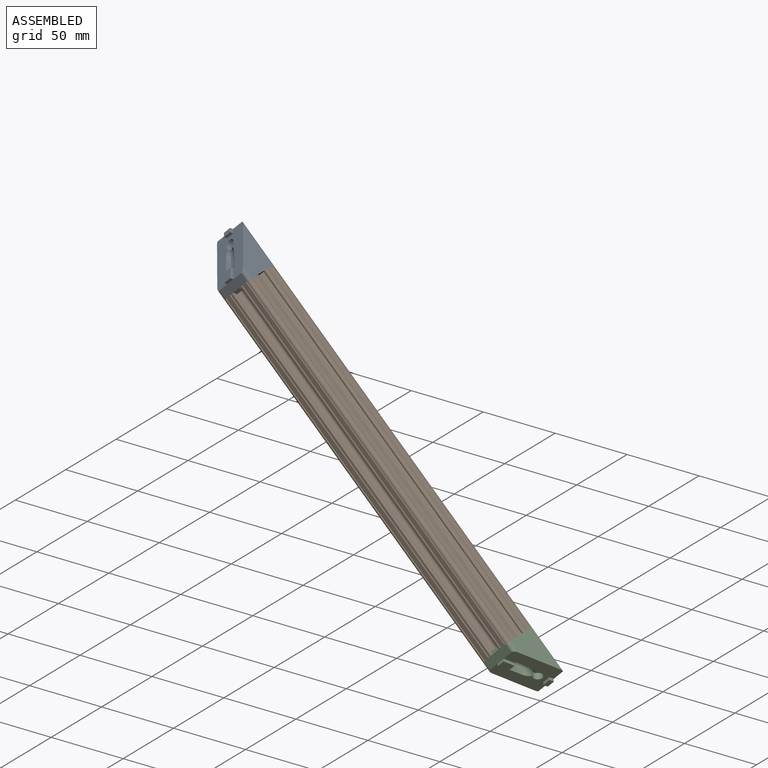
[diagram: assembled view]
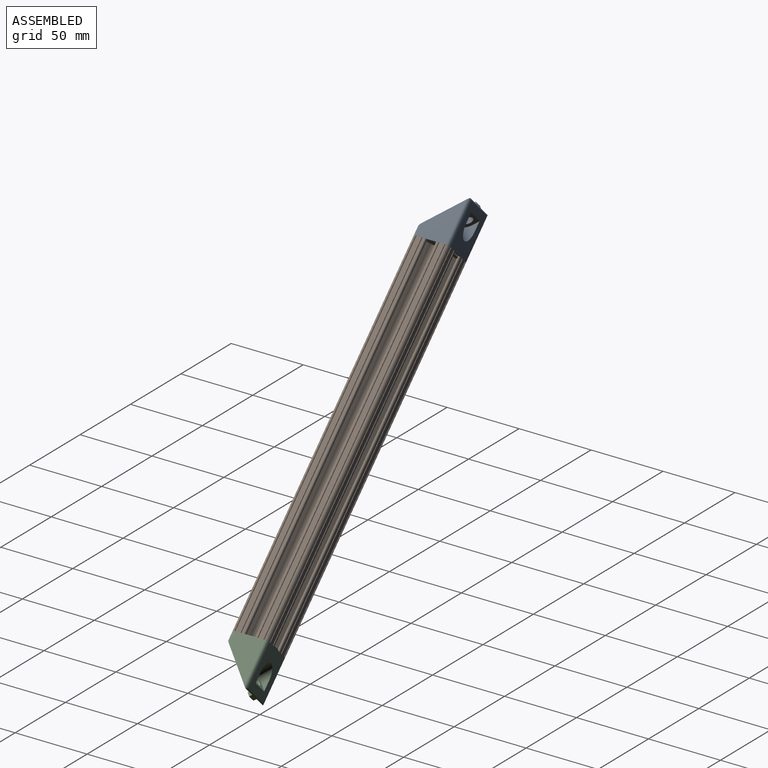
[diagram: assembled view, second angle]
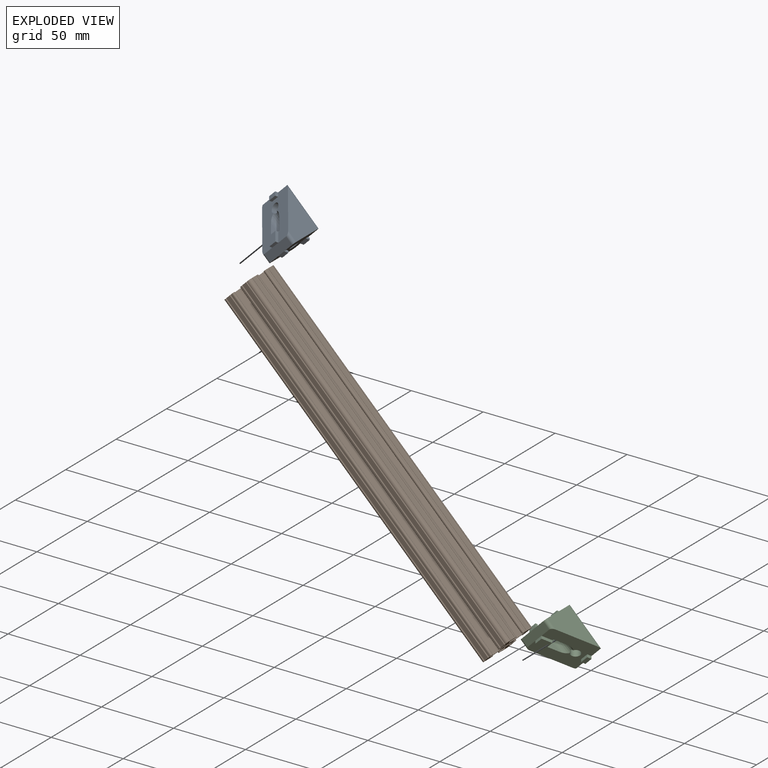
[diagram: exploded view]
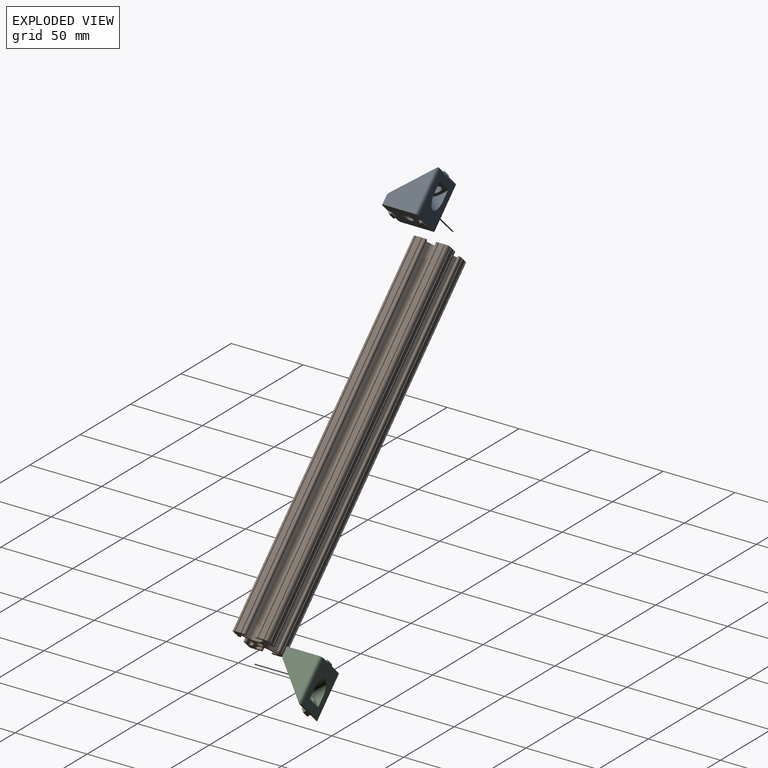
[diagram: exploded view, second angle]
ASSEMBLY  parts=3 mates=6
PART A: 49 faces, bbox 39.7x25.5x24.7 mm
  f0: plane 34.99x25.47mm, normal (0,0,-1), area 668.3mm2, adj f2,f4,f5,f6,f7,f12,f13,f14
  f1: plane 25.4x17.96mm, normal (-0.71,0,0.71), area 581.7mm2, adj f3,f4,f5,f6,f12,f13,f14,f15
  f2: plane 24.33x3mm, normal (1,0,0), area 35.4mm2, adj f0,f3,f14,f15,f25,f26,f27
  f3: plane 21.18x21.13mm, normal (0.71,0,0.71), area 468.4mm2, adj f1,f2,f8,f9,f10,f11,f14,f15
  f4: plane 21.18x4.17mm, normal (-0.71,0,-0.71), area 125mm2, adj f0,f1,f12,f13,f20,f28
  f5: plane 35.62x20.64mm, normal (0,-1,0), area 394mm2, adj f0,f1,f13,f15
  f6: plane 35.62x20.64mm, normal (0,1,0), area 394mm2, adj f0,f1,f12,f14
  f7: cylinder r=3.3mm len=6.6mm, axis (0,0,1), area 101.5mm2, adj f0,f11,f41
  f8: cylinder r=6mm len=12mm, axis (0,0,-1), area 156.8mm2, adj f3,f9,f10,f17
  f9: plane 4.5x4.5mm, normal (0,1,0), area 10.1mm2, adj f3,f8,f18
  f10: plane 4.5x4.5mm, normal (0,-1,0), area 10.1mm2, adj f3,f8,f16
  f11: plane 11x10.5mm, normal (0,0,1), area 68.3mm2, adj f3,f7,f16,f17,f18
  f12: cylinder r=2.11mm len=7.15mm, axis (-0.71,0,0.71), area 22.1mm2, adj f0,f1,f4,f6
  f13: cylinder r=2.11mm len=7.15mm, axis (0.71,0,-0.71), area 22.1mm2, adj f0,f1,f4,f5
  f14: cylinder r=2.11mm len=23.12mm, axis (0.71,0,-0.71), area 99.5mm2, adj f0,f1,f2,f3,f6
  f15: cylinder r=2.11mm len=23.12mm, axis (-0.71,0,0.71), area 99.5mm2, adj f0,f1,f2,f3,f5
  f16: cylinder r=0.5mm len=5mm, axis (-1,0,0), area 3.8mm2, adj f3,f10,f11,f17
  f17: torus R=5.5mm, axis (0,0,-1), area 14.4mm2, adj f8,f11,f16,f18
  f18: cylinder r=0.5mm len=5mm, axis (1,0,0), area 3.8mm2, adj f3,f9,f11,f17
  f19: plane 6x2mm, normal (1,0,0), area 12mm2, adj f21,f22,f23,f43
  f20: plane 6x2mm, normal (-1,0,0), area 12mm2, adj f4,f21,f22,f23
  f21: plane 7.5x6mm, normal (0,0,-1), area 45mm2, adj f19,f20,f22,f23
  f22: plane 7.5x2mm, normal (0,-1,0), area 15mm2, adj f0,f19,f20,f21
  f23: plane 7.5x2mm, normal (0,1,0), area 15mm2, adj f0,f19,f20,f21
  f24: plane 6x2mm, normal (-1,0,0), area 12mm2, adj f0,f25,f26,f27
  f25: plane 6x3mm, normal (0,0,-1), area 18mm2, adj f2,f24,f26,f27
  f26: plane 3x2mm, normal (0,-1,0), area 6mm2, adj f0,f2,f24,f25
  f27: plane 3x2mm, normal (0,1,0), area 6mm2, adj f0,f2,f24,f25
  f28: plane 6x2.83mm, normal (-1,0,0), area 17mm2, adj f4,f30,f31,f32
  f29: plane 6x1.33mm, normal (1,0,0), area 8mm2, adj f1,f30,f31,f32
  f30: plane 6x1.5mm, normal (0,0,1), area 9mm2, adj f28,f29,f31,f32
  f31: plane 2.83x1.5mm, normal (0,-1,0), area 3.1mm2, adj f1,f28,f29,f30
  f32: plane 2.83x1.5mm, normal (0,1,0), area 3.1mm2, adj f1,f28,f29,f30
  f33: plane 6x2.83mm, normal (-1,0,0), area 17mm2, adj f1,f35,f36,f37
  f34: plane 6x1.33mm, normal (1,0,0), area 8mm2, adj f1,f35,f36,f37
  f35: plane 6x1.5mm, normal (0,0,1), area 9mm2, adj f33,f34,f36,f37
  f36: plane 2.83x1.5mm, normal (0,-1,0), area 3.1mm2, adj f1,f33,f34,f35
  f37: plane 2.83x1.5mm, normal (0,1,0), area 3.1mm2, adj f1,f33,f34,f35
  f38: cylinder r=3.3mm len=8.2mm, axis (0.71,0,-0.71), area 103.7mm2, adj f1,f42
  f39: plane 12.05x9.26mm, normal (-0.01,1,0.01), area 57.9mm2, adj f0,f41,f46,f47
  f40: plane 12.05x9.26mm, normal (-0.01,-1,0.01), area 57.9mm2, adj f0,f41,f44,f48
  f41: cone r=4.25mm half-angle=1deg, axis (-0.71,0,0.71), area 198.4mm2, adj f0,f7,f39,f40,f45
  f42: plane 7.48x5.65mm, normal (0.71,0,-0.71), area 19.6mm2, adj f38,f43,f44,f45,f46
  f43: plane 7.49x6.61mm, normal (0.95,0,0.31), area 51.4mm2, adj f0,f19,f42,f44,f46,f47,f48
  f44: cylinder r=0.5mm len=3.37mm, axis (0.71,0,0.71), area 3.3mm2, adj f40,f42,f43,f45,f48
  f45: torus R=3.74mm, axis (-0.71,0,0.71), area 10.1mm2, adj f41,f42,f44,f46
  f46: cylinder r=0.5mm len=3.37mm, axis (-0.71,0,-0.71), area 3.3mm2, adj f39,f42,f43,f45,f47
  f47: cylinder r=0.5mm len=6.91mm, axis (0.31,0.02,-0.95), area 5.5mm2, adj f0,f39,f43,f46
  f48: cylinder r=0.5mm len=6.91mm, axis (0.31,-0.02,-0.95), area 5.5mm2, adj f0,f40,f43,f44
PART B: 99 faces, bbox 25.4x25.4x254 mm
  f0: cylinder r=1.08mm len=254mm, axis (0,0,1), area 646.8mm2, adj f1,f95,f97,f98
  f1: plane 254x3.23mm, normal (0.71,0.71,0), area 1158.3mm2, adj f0,f2,f97,f98
  f2: cylinder r=3.17mm len=254mm, axis (0,0,1), area 632.6mm2, adj f1,f3,f97,f98
  f3: plane 254x3.42mm, normal (0,1,0), area 868.3mm2, adj f2,f4,f97,f98
  f4: cylinder r=3.17mm len=254mm, axis (0,0,1), area 632.6mm2, adj f3,f5,f97,f98
  f5: plane 254x3.23mm, normal (-0.71,0.71,0), area 1158.3mm2, adj f4,f6,f97,f98
  f6: cylinder r=1.08mm len=254mm, axis (0,0,1), area 646.8mm2, adj f5,f7,f97,f98
  f7: plane 254x2.13mm, normal (0,-1,0), area 540.7mm2, adj f6,f8,f97,f98
  f8: cylinder r=1.05mm len=254mm, axis (0,0,1), area 418.5mm2, adj f7,f9,f97,f98
  f9: plane 254x0.11mm, normal (-1,0,0), area 28.4mm2, adj f8,f10,f97,f98
  f10: cylinder r=1.05mm len=254mm, axis (0,0,1), area 418.5mm2, adj f9,f11,f97,f98
  f11: plane 254x1.03mm, normal (0,1,0), area 261.5mm2, adj f10,f12,f97,f98
  f12: cylinder r=0.51mm len=254mm, axis (0,0,1), area 405.4mm2, adj f11,f13,f97,f98
  f13: plane 254x3.22mm, normal (0,1,0), area 817.2mm2, adj f12,f14,f97,f98
  f14: cylinder r=0.51mm len=254mm, axis (0,0,1), area 405.3mm2, adj f13,f15,f97,f98
  f15: cylinder r=2.11mm len=254mm, axis (0,0,1), area 854mm2, adj f14,f16,f97,f98
  f16: cylinder r=0.51mm len=254mm, axis (0,0,1), area 405.3mm2, adj f15,f17,f97,f98
  f17: plane 254x3.22mm, normal (1,0,0), area 817.2mm2, adj f16,f18,f97,f98
  f18: cylinder r=0.51mm len=254mm, axis (0,0,1), area 405.4mm2, adj f17,f19,f97,f98
  f19: plane 254x1.03mm, normal (1,0,0), area 261.5mm2, adj f18,f20,f97,f98
  f20: cylinder r=1.05mm len=254mm, axis (0,0,1), area 418.5mm2, adj f19,f21,f97,f98
  f21: plane 254x0.11mm, normal (0,-1,0), area 28.4mm2, adj f20,f22,f97,f98
  f22: cylinder r=1.05mm len=254mm, axis (0,0,1), area 418.5mm2, adj f21,f23,f97,f98
  f23: plane 254x2.11mm, normal (-1,0,0), area 537.1mm2, adj f22,f24,f97,f98
  f24: cylinder r=1.03mm len=254mm, axis (0,0,1), area 614.6mm2, adj f23,f25,f97,f98
  f25: plane 254x3.3mm, normal (0.71,-0.71,0), area 1182.6mm2, adj f24,f26,f97,f98
  f26: cylinder r=3.17mm len=254mm, axis (0,0,1), area 634.3mm2, adj f25,f27,f97,f98
  f27: plane 254x3.19mm, normal (1,0,0), area 809.3mm2, adj f26,f28,f97,f98
  f28: cylinder r=3.17mm len=254mm, axis (0,0,1), area 634.3mm2, adj f27,f29,f97,f98
  f29: plane 254x3.3mm, normal (0.71,0.71,0), area 1182.6mm2, adj f28,f30,f97,f98
  f30: cylinder r=1.03mm len=254mm, axis (0,0,1), area 614.6mm2, adj f29,f31,f97,f98
  f31: plane 254x2.11mm, normal (-1,0,0), area 537.1mm2, adj f30,f32,f97,f98
  f32: cylinder r=1.05mm len=254mm, axis (0,0,1), area 418.5mm2, adj f31,f33,f97,f98
  f33: plane 254x0.11mm, normal (0,1,0), area 28.4mm2, adj f32,f34,f97,f98
  f34: cylinder r=1.05mm len=254mm, axis (0,0,1), area 418.5mm2, adj f33,f35,f97,f98
  f35: plane 254x1.03mm, normal (1,0,0), area 261.5mm2, adj f34,f36,f97,f98
  f36: cylinder r=0.51mm len=254mm, axis (0,0,1), area 405.4mm2, adj f35,f37,f97,f98
  f37: plane 254x3.22mm, normal (1,0,0), area 817.2mm2, adj f36,f38,f97,f98
  f38: cylinder r=0.51mm len=254mm, axis (0,0,1), area 405.3mm2, adj f37,f39,f97,f98
  f39: cylinder r=2.11mm len=254mm, axis (0,0,1), area 854mm2, adj f38,f40,f97,f98
  f40: cylinder r=0.51mm len=254mm, axis (0,0,1), area 405.3mm2, adj f39,f41,f97,f98
  f41: plane 254x3.22mm, normal (0,-1,0), area 817.2mm2, adj f40,f42,f97,f98
  f42: cylinder r=0.51mm len=254mm, axis (0,0,1), area 405.4mm2, adj f41,f43,f97,f98
  f43: plane 254x1.03mm, normal (0,-1,0), area 261.5mm2, adj f42,f44,f97,f98
  f44: cylinder r=1.05mm len=254mm, axis (0,0,1), area 418.5mm2, adj f43,f45,f97,f98
  f45: plane 254x0.11mm, normal (-1,0,0), area 28.4mm2, adj f44,f46,f97,f98
  f46: cylinder r=1.05mm len=254mm, axis (0,0,1), area 418.5mm2, adj f45,f47,f97,f98
  f47: plane 254x2.19mm, normal (0,1,0), area 556.1mm2, adj f46,f48,f97,f98
  f48: cylinder r=1.03mm len=254mm, axis (0,0,1), area 619.1mm2, adj f47,f49,f97,f98
  f49: plane 254x3.31mm, normal (-0.71,-0.71,0), area 1187.2mm2, adj f48,f50,f97,f98
  f50: cylinder r=3.17mm len=254mm, axis (0,0,1), area 632.5mm2, adj f49,f51,f97,f98
  f51: plane 254x3.31mm, normal (0,-1,0), area 841.1mm2, adj f50,f52,f97,f98
  f52: cylinder r=3.17mm len=254mm, axis (0,0,1), area 632.5mm2, adj f51,f53,f97,f98
  f53: plane 254x3.31mm, normal (0.71,-0.71,0), area 1187.2mm2, adj f52,f54,f97,f98
  f54: cylinder r=1.03mm len=254mm, axis (0,0,1), area 619.1mm2, adj f53,f55,f97,f98
  f55: plane 254x2.19mm, normal (0,1,0), area 556.1mm2, adj f54,f56,f97,f98
  f56: cylinder r=1.05mm len=254mm, axis (0,0,1), area 418.5mm2, adj f55,f57,f97,f98
  f57: plane 254x0.11mm, normal (1,0,0), area 28.4mm2, adj f56,f58,f97,f98
  f58: cylinder r=1.05mm len=254mm, axis (0,0,1), area 418.5mm2, adj f57,f59,f97,f98
  f59: plane 254x1.03mm, normal (0,-1,0), area 261.5mm2, adj f58,f60,f97,f98
  f60: cylinder r=0.51mm len=254mm, axis (0,0,1), area 405.4mm2, adj f59,f61,f97,f98
  f61: plane 254x3.22mm, normal (0,-1,0), area 817.2mm2, adj f60,f62,f97,f98
  f62: cylinder r=0.51mm len=254mm, axis (0,0,1), area 405.3mm2, adj f61,f63,f97,f98
  f63: cylinder r=2.11mm len=254mm, axis (0,0,1), area 854mm2, adj f62,f64,f97,f98
  f64: cylinder r=0.51mm len=254mm, axis (0,0,1), area 405.3mm2, adj f63,f65,f97,f98
  f65: plane 254x3.22mm, normal (-1,0,0), area 817.2mm2, adj f64,f66,f97,f98
  f66: cylinder r=0.51mm len=254mm, axis (0,0,1), area 405.4mm2, adj f65,f67,f97,f98
  f67: plane 254x1.03mm, normal (-1,0,0), area 261.5mm2, adj f66,f68,f97,f98
  f68: cylinder r=1.05mm len=254mm, axis (0,0,1), area 418.5mm2, adj f67,f69,f97,f98
  f69: plane 254x0.11mm, normal (0,1,0), area 28.4mm2, adj f68,f70,f97,f98
  f70: cylinder r=1.05mm len=254mm, axis (0,0,1), area 418.5mm2, adj f69,f71,f97,f98
  f71: plane 254x2.11mm, normal (1,0,0), area 537.1mm2, adj f70,f72,f97,f98
  f72: cylinder r=1.03mm len=254mm, axis (0,0,1), area 614.6mm2, adj f71,f73,f97,f98
  f73: plane 254x3.3mm, normal (-0.71,0.71,0), area 1182.6mm2, adj f72,f74,f97,f98
  f74: cylinder r=3.17mm len=254mm, axis (0,0,1), area 634.3mm2, adj f73,f75,f97,f98
  f75: plane 254x3.19mm, normal (-1,0,0), area 809.3mm2, adj f74,f76,f97,f98
  f76: cylinder r=3.17mm len=254mm, axis (0,0,1), area 634.3mm2, adj f75,f77,f97,f98
  f77: plane 254x3.3mm, normal (-0.71,-0.71,0), area 1182.6mm2, adj f76,f78,f97,f98
  f78: cylinder r=1.03mm len=254mm, axis (0,0,1), area 614.6mm2, adj f77,f79,f97,f98
  f79: plane 254x2.11mm, normal (1,0,0), area 537.1mm2, adj f78,f80,f97,f98
  f80: cylinder r=1.05mm len=254mm, axis (0,0,1), area 418.5mm2, adj f79,f81,f97,f98
  f81: plane 254x0.11mm, normal (0,-1,0), area 28.4mm2, adj f80,f82,f97,f98
  f82: cylinder r=1.05mm len=254mm, axis (0,0,1), area 418.5mm2, adj f81,f83,f97,f98
  f83: plane 254x1.03mm, normal (-1,0,0), area 261.5mm2, adj f82,f84,f97,f98
  f84: cylinder r=0.51mm len=254mm, axis (0,0,1), area 405.4mm2, adj f83,f85,f97,f98
  f85: plane 254x3.22mm, normal (-1,0,0), area 817.2mm2, adj f84,f86,f97,f98
  f86: cylinder r=0.51mm len=254mm, axis (0,0,1), area 405.3mm2, adj f85,f87,f97,f98
  f87: cylinder r=2.11mm len=254mm, axis (0,0,1), area 854mm2, adj f86,f88,f97,f98
  f88: cylinder r=0.51mm len=254mm, axis (0,0,1), area 405.3mm2, adj f87,f89,f97,f98
  f89: plane 254x3.22mm, normal (0,1,0), area 817.2mm2, adj f88,f90,f97,f98
  f90: cylinder r=0.51mm len=254mm, axis (0,0,1), area 405.4mm2, adj f89,f91,f97,f98
  f91: plane 254x1.03mm, normal (0,1,0), area 261.5mm2, adj f90,f92,f97,f98
  f92: cylinder r=1.05mm len=254mm, axis (0,0,1), area 418.5mm2, adj f91,f93,f97,f98
  f93: plane 254x0.11mm, normal (1,0,0), area 28.4mm2, adj f92,f94,f97,f98
  f94: cylinder r=1.05mm len=254mm, axis (0,0,1), area 418.5mm2, adj f93,f95,f97,f98
  f95: plane 254x2.13mm, normal (0,-1,0), area 540.7mm2, adj f0,f94,f97,f98
  f96: cylinder r=2.6mm len=254mm, axis (0,0,1), area 4155mm2, adj f97,f98
  f97: plane 25.4x25.4mm, normal (0,0,1), area 280.1mm2, adj f0,f1,f2,f3,f4,f5,f6,f7
  f98: plane 25.4x25.4mm, normal (0,0,-1), area 280.1mm2, adj f0,f1,f2,f3,f4,f5,f6,f7
PART C: same geometry as A
PLACE A rot(axis=(-0.5,-0.71,-0.5),180deg) t=(-248.9,-73.94,183.75)mm
PLACE B rot(axis=(0,-1,0),45deg) t=(-136.97,-61.24,71.81)mm
PLACE C rot(axis=(-0.71,0,0.71),90deg) t=(-60.95,-73.94,-4.2)mm
MATE planar C.f4 <-> B.f61  axis (0,-1,0) through (-63.04,-73.94,-2.12)mm
MATE planar A.f6 <-> B.f37  axis (0.71,0,0.71) through (-243.03,-59.23,195.84)mm
MATE planar A.f1 <-> B.f97  axis (0.71,0,-0.71) through (-244.73,-61.19,179.58)mm
MATE cylindrical B.f96 <-> C.f38  axis (-0.71,0,0.71) through (-65.12,-61.24,-0.03)mm
MATE cylindrical B.f96 <-> A.f38  axis (-0.71,0,0.71) through (-244.73,-61.24,179.58)mm
MATE planar B.f98 <-> C.f1  axis (0.71,0,-0.71) through (-61.93,-59.65,3.16)mm
